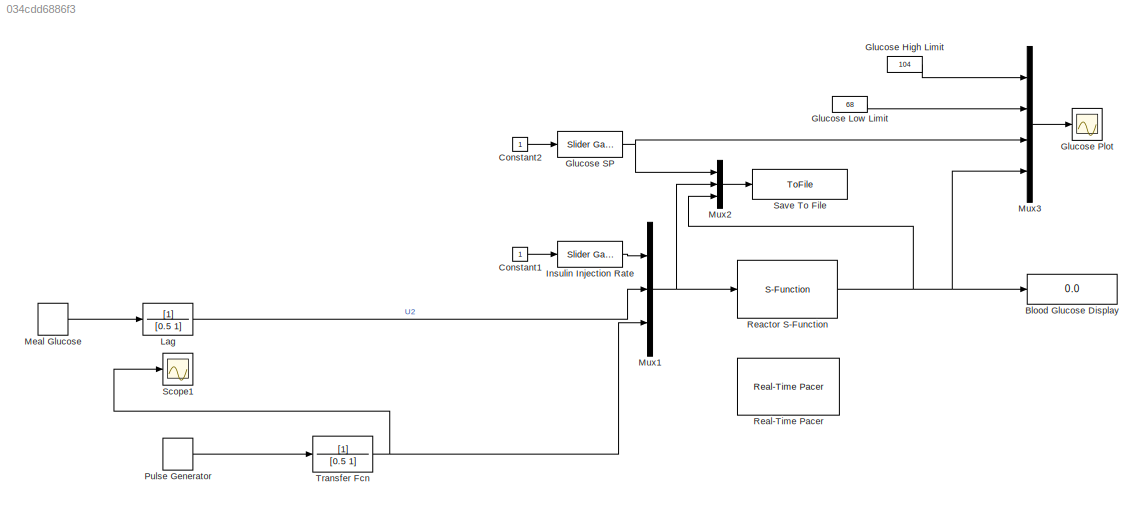
MODEL slx_034cdd6886f3
KIND model
CONFIG AbsTol = auto
CONFIG EnableMultiTasking = on
CONFIG FixedStep = auto
CONFIG MaxStep = auto
CONFIG MinStep = auto
CONFIG RelTol = 1e-3
CONFIG SampleTimeConstraint = Unconstrained
CONFIG Solver = ode45
CONFIG SolverName = ode45
CONFIG StartTime = 0.0
CONFIG StopFcn = step_results
CONFIG StopTime = 24
BLOCK [Display] Blood Glucose Display
  Decimation = 1
  Ports = [1]
BLOCK [Constant] Constant1
BLOCK [Constant] Constant2
BLOCK [Constant] Glucose High Limit
  Value = 104
BLOCK [Constant] Glucose Low Limit
  Value = 68
BLOCK [Scope] Glucose Plot
  Floating = off
  NumInputPorts = 1
  Ports = [1]
  ScopeSpecificationString = Simulink.scopes.TimeScopeBlockCfg('CurrentConfiguration', extmgr.ConfigurationSet(extmgr.Configuration('Core','General UI',true,'FigureColor',[1 1 1]),extmgr.Configuration('Core','Source UI',true),extmgr.Configuration('Sources','WiredSimulink',true,'DataLoggingVariableName','ScopeData1','DataLoggingSaveFormat','StructureWithTime','DataLoggingMaxPoints','30000','DataLoggingLimitDataPoints',true,'Da...<+2893ch>
BLOCK [Reference] Glucose SP  REF=simulink/Math
Operations/Slider
Gain
  Ports = [1, 1]
  SourceBlock = simulink/Math\nOperations/Slider\nGain
  SourceProductBaseCode = SL
  SourceProductName = Simulink
  SourceType = Slider Gain
BLOCK [Reference] Insulin Injection Rate  REF=simulink/Math
Operations/Slider
Gain
  Ports = [1, 1]
  SourceBlock = simulink/Math\nOperations/Slider\nGain
  SourceProductBaseCode = SL
  SourceProductName = Simulink
  SourceType = Slider Gain
BLOCK [TransferFcn] Lag
  Denominator = [0.5 1]
BLOCK [DiscretePulseGenerator] Meal Glucose
  Amplitude = 200
  Period = 6
  PhaseDelay = 7
  Ports = [0, 1]
  PulseType = Time based
  PulseWidth = 10
BLOCK [Mux] Mux1
  DisplayOption = bar
  Inputs = 3
  Ports = [3, 1]
BLOCK [Mux] Mux2
  DisplayOption = bar
  Inputs = 3
  Ports = [3, 1]
BLOCK [Mux] Mux3
  DisplayOption = bar
  Ports = [4, 1]
BLOCK [DiscretePulseGenerator] Pulse Generator
  Amplitude = 90
  Period = 24
  PhaseDelay = 4
  Ports = [0, 1]
  PulseType = Time based
  PulseWidth = 10
BLOCK [S-Function] Reactor S-Function
  EnableBusSupport = off
  FunctionName = diabetic
  Ports = [1, 1]
  SFcnIsStateOwnerBlock = off
  SFunctionDeploymentMode = off
BLOCK [Reference] Real-Time Pacer  REF=realtime_pacer_lib/Real-Time Pacer
  Ports = []
  SourceBlock = realtime_pacer_lib/Real-Time Pacer
  SourceType = RealTime_Pacer
BLOCK [ToFile] Save To File
  Filename = data.mat
  MatrixName = diabetic
  Ports = [1]
  SampleTime = 0.05
BLOCK [Scope] Scope1
  Floating = off
  NumInputPorts = 1
  Ports = [1]
  ScopeSpecificationString = Simulink.scopes.TimeScopeBlockCfg('CurrentConfiguration', extmgr.ConfigurationSet(extmgr.Configuration('Core','General UI',true),extmgr.Configuration('Core','Source UI',true),extmgr.Configuration('Sources','WiredSimulink',true),extmgr.Configuration('Visuals','Time Domain',true,'SerializedDisplays',{struct('MinYLimReal','-6.25','MaxYLimReal','56.25','YLabelReal','','MinYLimMag','0.00000','MaxYLimMa...<+1390ch>
BLOCK [TransferFcn] Transfer Fcn
  Denominator = [0.5 1]
LINE Constant1:1 -> Insulin Injection Rate:1
LINE Constant2:1 -> Glucose SP:1
LINE Glucose High Limit:1 -> Mux3:1
LINE Glucose Low Limit:1 -> Mux3:2
NET Glucose SP:1 -> Mux2:1, Mux3:3
LINE Insulin Injection Rate:1 -> Mux1:1
LINE Lag:1 -> Mux1:2
LINE Meal Glucose:1 -> Lag:1
NET Mux1:1 -> Mux2:2, Reactor S-Function:1
LINE Mux2:1 -> Save To File:1
LINE Mux3:1 -> Glucose Plot:1
LINE Pulse Generator:1 -> Transfer Fcn:1
NET Reactor S-Function:1 -> Blood Glucose Display:1, Mux2:3, Mux3:4
NET Transfer Fcn:1 -> Mux1:3, Scope1:1
note: NET lines group one-source signal fan-out (src -> all destinations, sorted); 1:1 wires keep LINE
